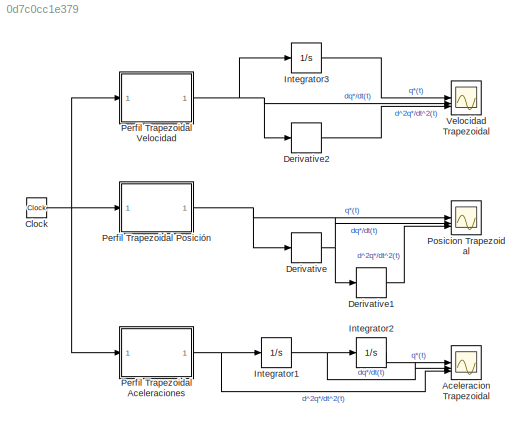
MODEL slx_0d7c0cc1e379
KIND model
CONFIG AbsTol = auto
CONFIG EnableMultiTasking = off
CONFIG FixedStep = auto
CONFIG MaxStep = 1e-3
CONFIG MinStep = auto
CONFIG RelTol = 1e-3
CONFIG SampleTimeConstraint = Unconstrained
CONFIG SolverName = VariableStepAuto
CONFIG StartTime = 0.0
CONFIG StopTime = 15
BLOCK [Scope] Aceleracion Trapezoidal
  Floating = off
  NumInputPorts = 3
  ScopeSpecificationString = Simulink.scopes.TimeScopeBlockCfg('CurrentConfiguration', extmgr.ConfigurationSet(extmgr.Configuration('Core','General UI',true),extmgr.Configuration('Core','Source UI',true),extmgr.Configuration('Sources','WiredSimulink',true,'DataLoggingVariableName','ScopeData1'),extmgr.Configuration('Visuals','Time Domain',true,'SerializedDisplays',{struct('MinYLimReal','-0.7854','MaxYLimReal','7.06858','YLabe...<+2852ch>
BLOCK [Clock] Clock
BLOCK [Derivative] Derivative
BLOCK [Derivative] Derivative1
BLOCK [Derivative] Derivative2
BLOCK [Integrator] Integrator1
BLOCK [Integrator] Integrator2
BLOCK [Integrator] Integrator3
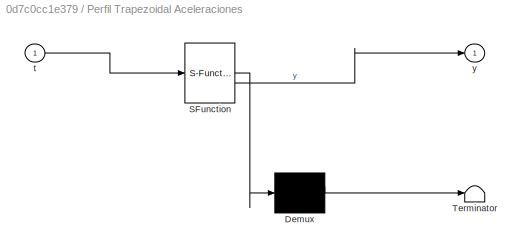
BLOCK [SubSystem] Perfil Trapezoidal Aceleraciones
  ErrorFcn = Stateflow.Translate.translate
  PermitHierarchicalResolution = ExplicitOnly
  SFBlockType = MATLAB Function
  TreatAsAtomicUnit = on
BLOCK [Demux] Perfil Trapezoidal Aceleraciones/ Demux 
  Outputs = 1
BLOCK [S-Function] Perfil Trapezoidal Aceleraciones/ SFunction 
  EnableBusSupport = on
  FunctionName = sf_sfun
  PortCounts = [1 2]
  SFcnIsStateOwnerBlock = off
  SFunctionDeploymentMode = off
  Tag = Stateflow S-Function 1
BLOCK [Terminator] Perfil Trapezoidal Aceleraciones/ Terminator 
BLOCK [Inport] Perfil Trapezoidal Aceleraciones/t
BLOCK [Outport] Perfil Trapezoidal Aceleraciones/y
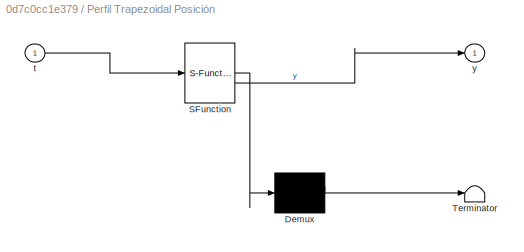
BLOCK [SubSystem] Perfil Trapezoidal Posición
  ErrorFcn = Stateflow.Translate.translate
  PermitHierarchicalResolution = ExplicitOnly
  SFBlockType = MATLAB Function
  TreatAsAtomicUnit = on
BLOCK [Demux] Perfil Trapezoidal Posición/ Demux 
  Outputs = 1
BLOCK [S-Function] Perfil Trapezoidal Posición/ SFunction 
  EnableBusSupport = on
  FunctionName = sf_sfun
  PortCounts = [1 2]
  SFcnIsStateOwnerBlock = off
  SFunctionDeploymentMode = off
  Tag = Stateflow S-Function 2
BLOCK [Terminator] Perfil Trapezoidal Posición/ Terminator 
BLOCK [Inport] Perfil Trapezoidal Posición/t
BLOCK [Outport] Perfil Trapezoidal Posición/y
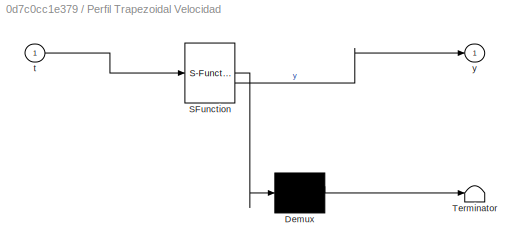
BLOCK [SubSystem] Perfil Trapezoidal Velocidad
  ErrorFcn = Stateflow.Translate.translate
  PermitHierarchicalResolution = ExplicitOnly
  SFBlockType = MATLAB Function
  TreatAsAtomicUnit = on
BLOCK [Demux] Perfil Trapezoidal Velocidad/ Demux 
  Outputs = 1
BLOCK [S-Function] Perfil Trapezoidal Velocidad/ SFunction 
  EnableBusSupport = on
  FunctionName = sf_sfun
  PortCounts = [1 2]
  SFcnIsStateOwnerBlock = off
  SFunctionDeploymentMode = off
  Tag = Stateflow S-Function 3
BLOCK [Terminator] Perfil Trapezoidal Velocidad/ Terminator 
BLOCK [Inport] Perfil Trapezoidal Velocidad/t
BLOCK [Outport] Perfil Trapezoidal Velocidad/y
BLOCK [Scope] Posicion Trapezoidal
  Floating = off
  NumInputPorts = 3
  ScopeSpecificationString = Simulink.scopes.TimeScopeBlockCfg('CurrentConfiguration', extmgr.ConfigurationSet(extmgr.Configuration('Core','General UI',true),extmgr.Configuration('Core','Source UI',true),extmgr.Configuration('Sources','WiredSimulink',true),extmgr.Configuration('Visuals','Time Domain',true,'SerializedDisplays',{struct('MinYLimReal','-0.7854','MaxYLimReal','7.06858','YLabelReal','','MinYLimMag','0.00000','MaxYL...<+2813ch>
BLOCK [Scope] Velocidad Trapezoidal
  Floating = off
  NumInputPorts = 3
  ScopeSpecificationString = Simulink.scopes.TimeScopeBlockCfg('CurrentConfiguration', extmgr.ConfigurationSet(extmgr.Configuration('Core','General UI',true),extmgr.Configuration('Core','Source UI',true),extmgr.Configuration('Sources','WiredSimulink',true,'DataLoggingVariableName','ScopeData1'),extmgr.Configuration('Visuals','Time Domain',true,'SerializedDisplays',{struct('MinYLimReal','-0.7854','MaxYLimReal','7.06858','YLabe...<+2854ch>
NET Clock:1 -> Perfil Trapezoidal Aceleraciones:1, Perfil Trapezoidal Posición:1, Perfil Trapezoidal Velocidad:1
LINE Derivative1:1 -> Posicion Trapezoidal:3
LINE Derivative2:1 -> Velocidad Trapezoidal:3
NET Derivative:1 -> Derivative1:1, Posicion Trapezoidal:2
NET Integrator1:1 -> Aceleracion Trapezoidal:2, Integrator2:1
LINE Integrator2:1 -> Aceleracion Trapezoidal:1
LINE Integrator3:1 -> Velocidad Trapezoidal:1
NET Perfil Trapezoidal Aceleraciones:1 -> Aceleracion Trapezoidal:3, Integrator1:1
NET Perfil Trapezoidal Posición:1 -> Derivative:1, Posicion Trapezoidal:1
NET Perfil Trapezoidal Velocidad:1 -> Derivative2:1, Integrator3:1, Velocidad Trapezoidal:2
note: NET lines group one-source signal fan-out (src -> all destinations, sorted); 1:1 wires keep LINE
CHART Perfil Trapezoidal 
Posición states=1 transitions=1
  STATE_LABEL 'eML_blk_kernel()'
  STATE_LABEL 'SCRIPT:\nfunction y = consigna_original(t)\n    % Parámetros\n    T = 15;              % Periodo total\n    ramp_time = 0.5;     % Duración de la rampa (en segundos)\n    amplitude = 2 * pi; % Amplitud del trapecio\n\n\n    % Calcular el tiempo dentro del período\n    t_mod = mod(t, T);\n\n    % Inicializar salida\n    y = 0;\n\n    if t_mod >= 0 && t_mod < T/3\n        y = amplitude * t_mod/(T/3);\n    end\n    i...<+163ch>'
CHART Perfil Trapezoidal Velocidad states=1 transitions=1
  STATE_LABEL 'eML_blk_kernel()'
  STATE_LABEL 'SCRIPT:\nfunction y = trapecio_periodico(t)\n    % Parámetros\n    T = 15;              % Periodo total\n    ramp_time = 0.5;     % Duración de la rampa (en segundos)\n    amplitude = 2 * pi / 5; % Amplitud del trapecio\n    \n    %% Calculo de parámetros\n    tr1 = 0.25;\n    h1 = 4*pi/(10-2*tr1);\n\n    % Calcular el tiempo dentro del período\n    t_mod = mod(t, T);\n\n    % Inicializar salida\n    y = 0;\n    ...<+649ch>'
CHART Perfil Trapezoidal
Aceleraciones states=1 transitions=1
  STATE_LABEL 'eML_blk_kernel()'
  STATE_LABEL 'SCRIPT:\nfunction y = trapecio_periodico(t)\n    % Parámetros\n    T = 15;              % Periodo total\n    ramp_time = 0.5;     % Duración de la rampa (en segundos)\n    amplitude = 2 * pi / 5; % Amplitud del trapecio\n    \n    %% Calculo de parámetros\n    tr1 = 0.25;\n    tr2 = tr1/5;\n    h1 = 4*pi/(10-2*tr1);\n    h2 = 2*h1/(2*tr1-2*tr2);\n\n    % Calcular el tiempo dentro del período\n    t_mod = mod(t,...<+2019ch>'
CHART  states=0 transitions=0
CHART  states=0 transitions=0
CHART  states=0 transitions=0
